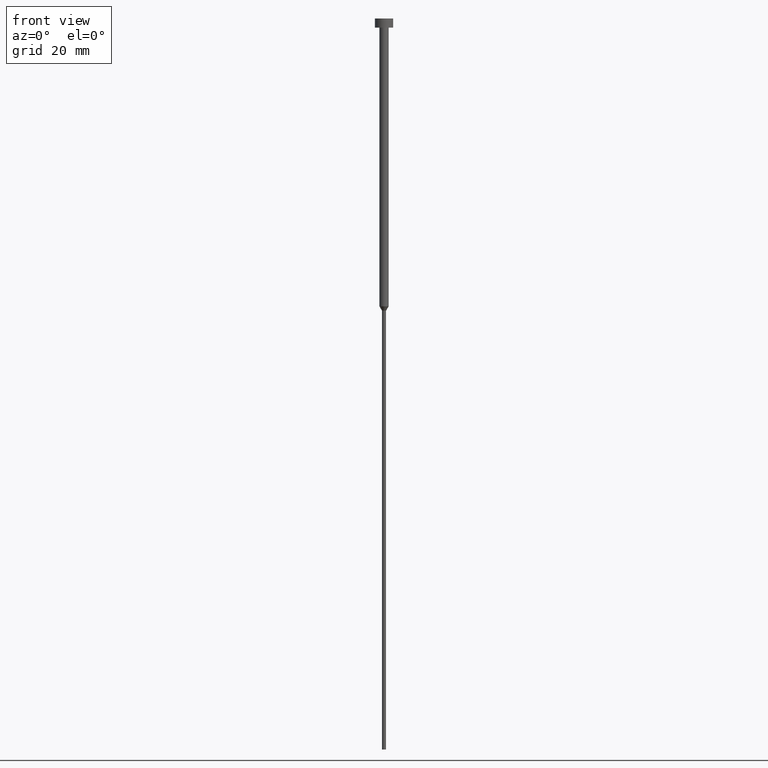
[diagram: clean part render]
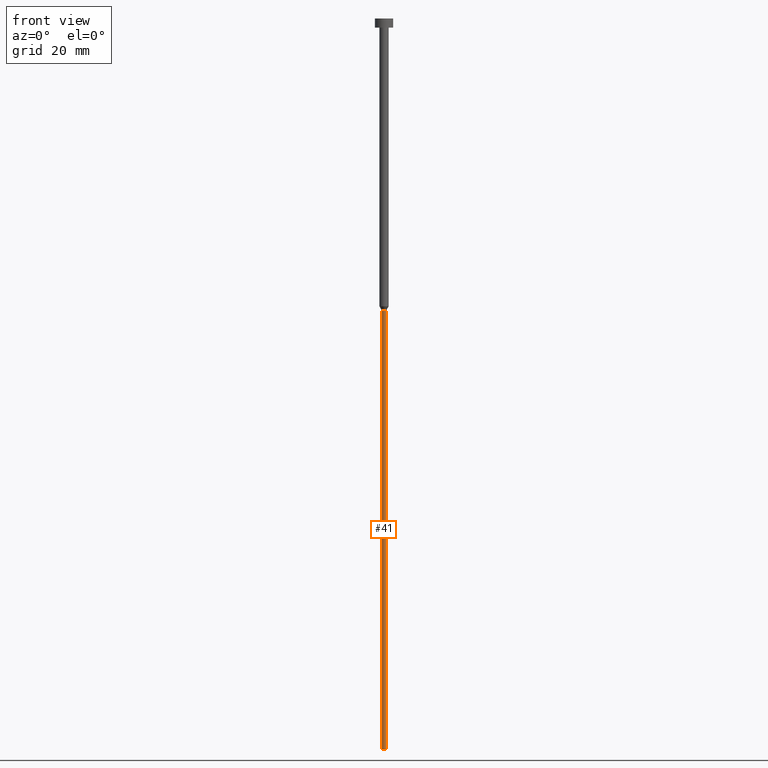
[diagram: same view with one face highlighted and labeled with its STEP entity id]
A machine part, front view. The second image highlights one B-rep face of the part: STEP entity #41.
In plain terms, the highlighted cylindrical surface (edge-blend (fillet) strip) has radius 0.45 mm, axis along (-0, -0, 1).
Its self-contained STEP definition (entity closure, byte-faithful):
#19 = VERTEX_POINT ( 'NONE', #296 ) ;
#25 = CARTESIAN_POINT ( 'NONE',  ( 0.000000000000000000, 0.000000000000000000, -160.0000000000000000 ) ) ;
#31 = LINE ( 'NONE', #63, #113 ) ;
#35 = ORIENTED_EDGE ( 'NONE', *, *, #326, .F. ) ;
#41 = ADVANCED_FACE ( 'NONE', ( #352 ), #328, .T. ) ;
#49 = VERTEX_POINT ( 'NONE', #241 ) ;
#50 = ORIENTED_EDGE ( 'NONE', *, *, #103, .F. ) ;
#59 = DIRECTION ( 'NONE',  ( -0.000000000000000000, -0.000000000000000000, 1.000000000000000000 ) ) ;
#62 = AXIS2_PLACEMENT_3D ( 'NONE', #25, #239, #107 ) ;
#63 = CARTESIAN_POINT ( 'NONE',  ( 0.4500000000000000111, 0.000000000000000000, 0.000000000000000000 ) ) ;
#66 = EDGE_CURVE ( 'NONE', #49, #177, #252, .T. ) ;
#85 = CARTESIAN_POINT ( 'NONE',  ( 0.4500000000000000111, 0.000000000000000000, -63.95262794416288443 ) ) ;
#103 = EDGE_CURVE ( 'NONE', #19, #130, #145, .T. ) ;
#107 = DIRECTION ( 'NONE',  ( 1.000000000000000000, 0.000000000000000000, 0.000000000000000000 ) ) ;
#113 = VECTOR ( 'NONE', #331, 1000.000000000000000 ) ;
#130 = VERTEX_POINT ( 'NONE', #85 ) ;
#145 = CIRCLE ( 'NONE', #184, 0.4500000000000000111 ) ;
#146 = DIRECTION ( 'NONE',  ( -0.000000000000000000, -0.000000000000000000, 1.000000000000000000 ) ) ;
#172 = LINE ( 'NONE', #334, #236 ) ;
#177 = VERTEX_POINT ( 'NONE', #190 ) ;
#184 = AXIS2_PLACEMENT_3D ( 'NONE', #291, #325, #213 ) ;
#190 = CARTESIAN_POINT ( 'NONE',  ( 0.4500000000000000111, 0.000000000000000000, -160.0000000000000000 ) ) ;
#202 = EDGE_LOOP ( 'NONE', ( #35, #289, #260, #50 ) ) ;
#213 = DIRECTION ( 'NONE',  ( 1.000000000000000000, 0.000000000000000000, 0.000000000000000000 ) ) ;
#234 = AXIS2_PLACEMENT_3D ( 'NONE', #268, #59, #274 ) ;
#236 = VECTOR ( 'NONE', #146, 1000.000000000000000 ) ;
#239 = DIRECTION ( 'NONE',  ( -0.000000000000000000, -0.000000000000000000, 1.000000000000000000 ) ) ;
#241 = CARTESIAN_POINT ( 'NONE',  ( -0.4500000000000000111, 5.510910596163088939E-17, -160.0000000000000000 ) ) ;
#252 = CIRCLE ( 'NONE', #62, 0.4500000000000000111 ) ;
#260 = ORIENTED_EDGE ( 'NONE', *, *, #263, .T. ) ;
#263 = EDGE_CURVE ( 'NONE', #177, #130, #31, .T. ) ;
#268 = CARTESIAN_POINT ( 'NONE',  ( 0.000000000000000000, 0.000000000000000000, 0.000000000000000000 ) ) ;
#274 = DIRECTION ( 'NONE',  ( 1.000000000000000000, 0.000000000000000000, 0.000000000000000000 ) ) ;
#289 = ORIENTED_EDGE ( 'NONE', *, *, #66, .T. ) ;
#291 = CARTESIAN_POINT ( 'NONE',  ( 0.000000000000000000, 0.000000000000000000, -63.95262794416288443 ) ) ;
#296 = CARTESIAN_POINT ( 'NONE',  ( -0.4500000000000000111, 5.510910596163088939E-17, -63.95262794416288443 ) ) ;
#325 = DIRECTION ( 'NONE',  ( -0.000000000000000000, -0.000000000000000000, 1.000000000000000000 ) ) ;
#326 = EDGE_CURVE ( 'NONE', #49, #19, #172, .T. ) ;
#328 = CYLINDRICAL_SURFACE ( 'NONE', #234, 0.4500000000000000111 ) ;
#331 = DIRECTION ( 'NONE',  ( -0.000000000000000000, -0.000000000000000000, 1.000000000000000000 ) ) ;
#334 = CARTESIAN_POINT ( 'NONE',  ( -0.4500000000000000111, 5.510910596163088939E-17, 0.000000000000000000 ) ) ;
#352 = FACE_OUTER_BOUND ( 'NONE', #202, .T. ) ;